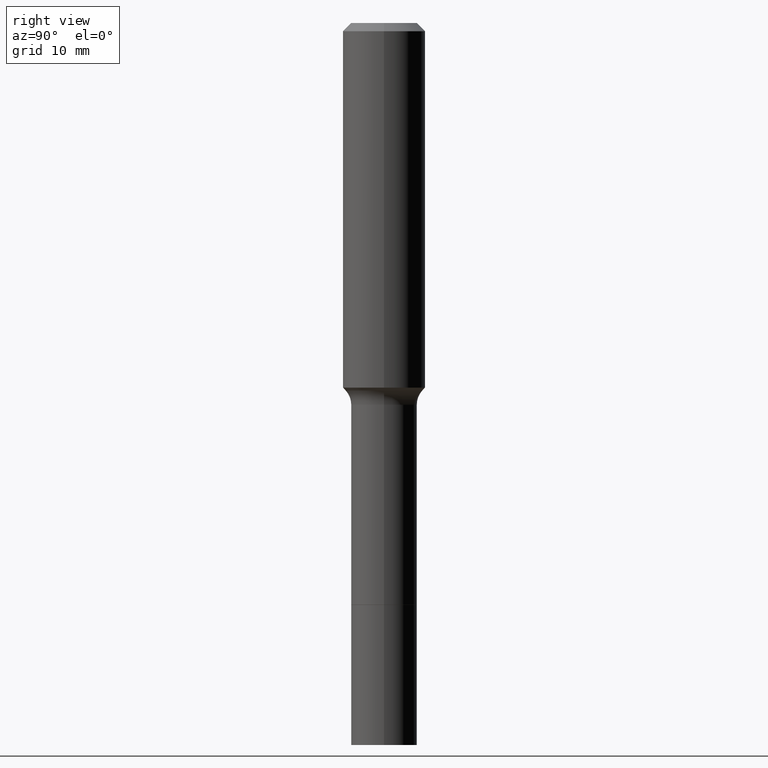
[diagram: clean part render]
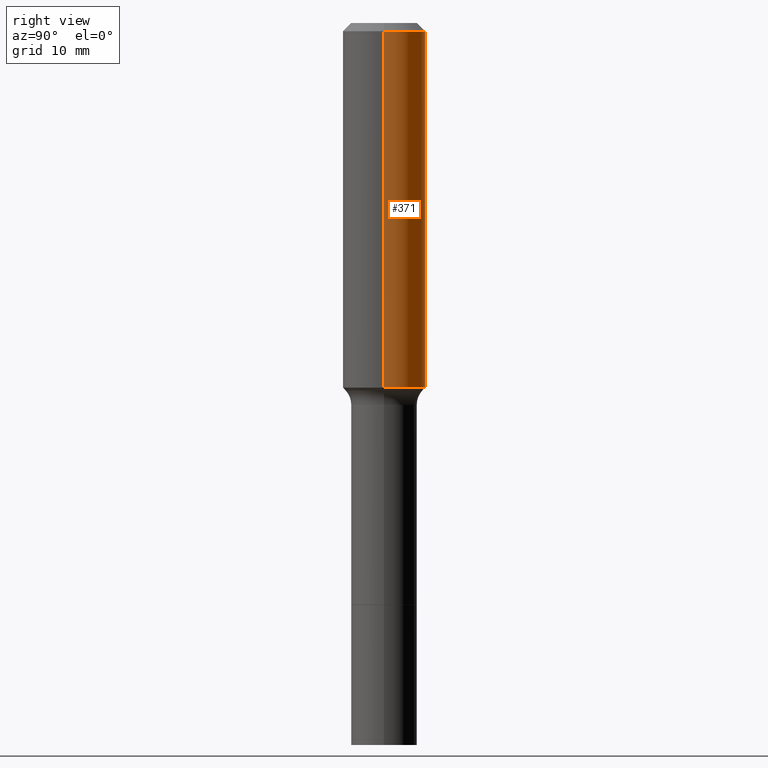
[diagram: same view with one face highlighted and labeled with its STEP entity id]
A machine part, right view. The second image highlights one B-rep face of the part: STEP entity #371.
In plain terms, the highlighted cylindrical surface (partial cylindrical patch) has radius 4.0005 mm, axis along (-0, 0, 1).
Its self-contained STEP definition (entity closure, byte-faithful):
#7 = CIRCLE ( 'NONE', #294, 0.1575000000000001676 ) ;
#12 = VERTEX_POINT ( 'NONE', #445 ) ;
#86 = EDGE_CURVE ( 'NONE', #164, #12, #148, .T. ) ;
#88 = EDGE_LOOP ( 'NONE', ( #329, #480, #463, #287 ) ) ;
#99 = CARTESIAN_POINT ( 'NONE',  ( 7.703226739483230474E-31, -1.099816621735598031E-16, -0.03150000000000020839 ) ) ;
#101 = CARTESIAN_POINT ( 'NONE',  ( -0.1575000000000000011, -1.365271913957819338E-15, -0.03150000000000020839 ) ) ;
#102 = CARTESIAN_POINT ( 'NONE',  ( -0.1575000000000001676, -3.739666974564237215E-15, -1.391607547585026916 ) ) ;
#128 = EDGE_CURVE ( 'NONE', #12, #437, #491, .T. ) ;
#137 = DIRECTION ( 'NONE',  ( 1.000000000000000000, -6.982962677686265922E-15, 0.000000000000000000 ) ) ;
#148 = LINE ( 'NONE', #179, #230 ) ;
#153 = VERTEX_POINT ( 'NONE', #102 ) ;
#156 = DIRECTION ( 'NONE',  ( -2.445468806185136597E-29, 3.491481338843145583E-15, 1.000000000000000000 ) ) ;
#164 = VERTEX_POINT ( 'NONE', #256 ) ;
#165 = LINE ( 'NONE', #310, #268 ) ;
#167 = AXIS2_PLACEMENT_3D ( 'NONE', #383, #156, #225 ) ;
#179 = CARTESIAN_POINT ( 'NONE',  ( 0.1575000000000000844, -1.099816621735587677E-15, 7.679978421878603638E-30 ) ) ;
#192 = FACE_OUTER_BOUND ( 'NONE', #88, .T. ) ;
#194 = CYLINDRICAL_SURFACE ( 'NONE', #167, 0.1575000000000000844 ) ;
#225 = DIRECTION ( 'NONE',  ( 1.000000000000000000, -6.982962677686267499E-15, 4.876176775795936353E-29 ) ) ;
#230 = VECTOR ( 'NONE', #451, 39.37007874015748143 ) ;
#254 = DIRECTION ( 'NONE',  ( -2.445468806185136597E-29, 3.491481338843145583E-15, 1.000000000000000000 ) ) ;
#256 = CARTESIAN_POINT ( 'NONE',  ( 0.1575000000000001676, -5.958588405121984666E-15, -1.391607547585026916 ) ) ;
#268 = VECTOR ( 'NONE', #467, 39.37007874015748143 ) ;
#272 = AXIS2_PLACEMENT_3D ( 'NONE', #99, #254, #137 ) ;
#286 = DIRECTION ( 'NONE',  ( -2.445468806185136597E-29, 3.491481338843145583E-15, 1.000000000000000000 ) ) ;
#287 = ORIENTED_EDGE ( 'NONE', *, *, #86, .F. ) ;
#294 = AXIS2_PLACEMENT_3D ( 'NONE', #398, #286, #441 ) ;
#310 = CARTESIAN_POINT ( 'NONE',  ( -0.1575000000000000844, 1.119104808822158392E-15, -7.747322767151481189E-30 ) ) ;
#329 = ORIENTED_EDGE ( 'NONE', *, *, #360, .T. ) ;
#360 = EDGE_CURVE ( 'NONE', #164, #153, #7, .T. ) ;
#371 = ADVANCED_FACE ( 'NONE', ( #192 ), #194, .T. ) ;
#383 = CARTESIAN_POINT ( 'NONE',  ( 0.000000000000000000, 0.000000000000000000, 0.000000000000000000 ) ) ;
#398 = CARTESIAN_POINT ( 'NONE',  ( 3.403132848070981599E-29, -4.858771783386396397E-15, -1.391607547585026916 ) ) ;
#437 = VERTEX_POINT ( 'NONE', #101 ) ;
#441 = DIRECTION ( 'NONE',  ( 1.000000000000000000, -6.982962677686267499E-15, 0.000000000000000000 ) ) ;
#445 = CARTESIAN_POINT ( 'NONE',  ( 0.1575000000000000011, -1.209798283909146741E-15, -0.03150000000000020839 ) ) ;
#451 = DIRECTION ( 'NONE',  ( -2.445468806185136877E-29, 3.491481338843145188E-15, 1.000000000000000000 ) ) ;
#463 = ORIENTED_EDGE ( 'NONE', *, *, #128, .F. ) ;
#467 = DIRECTION ( 'NONE',  ( -2.445468806185136877E-29, 3.491481338843145188E-15, 1.000000000000000000 ) ) ;
#480 = ORIENTED_EDGE ( 'NONE', *, *, #510, .T. ) ;
#491 = CIRCLE ( 'NONE', #272, 0.1575000000000000011 ) ;
#510 = EDGE_CURVE ( 'NONE', #153, #437, #165, .T. ) ;